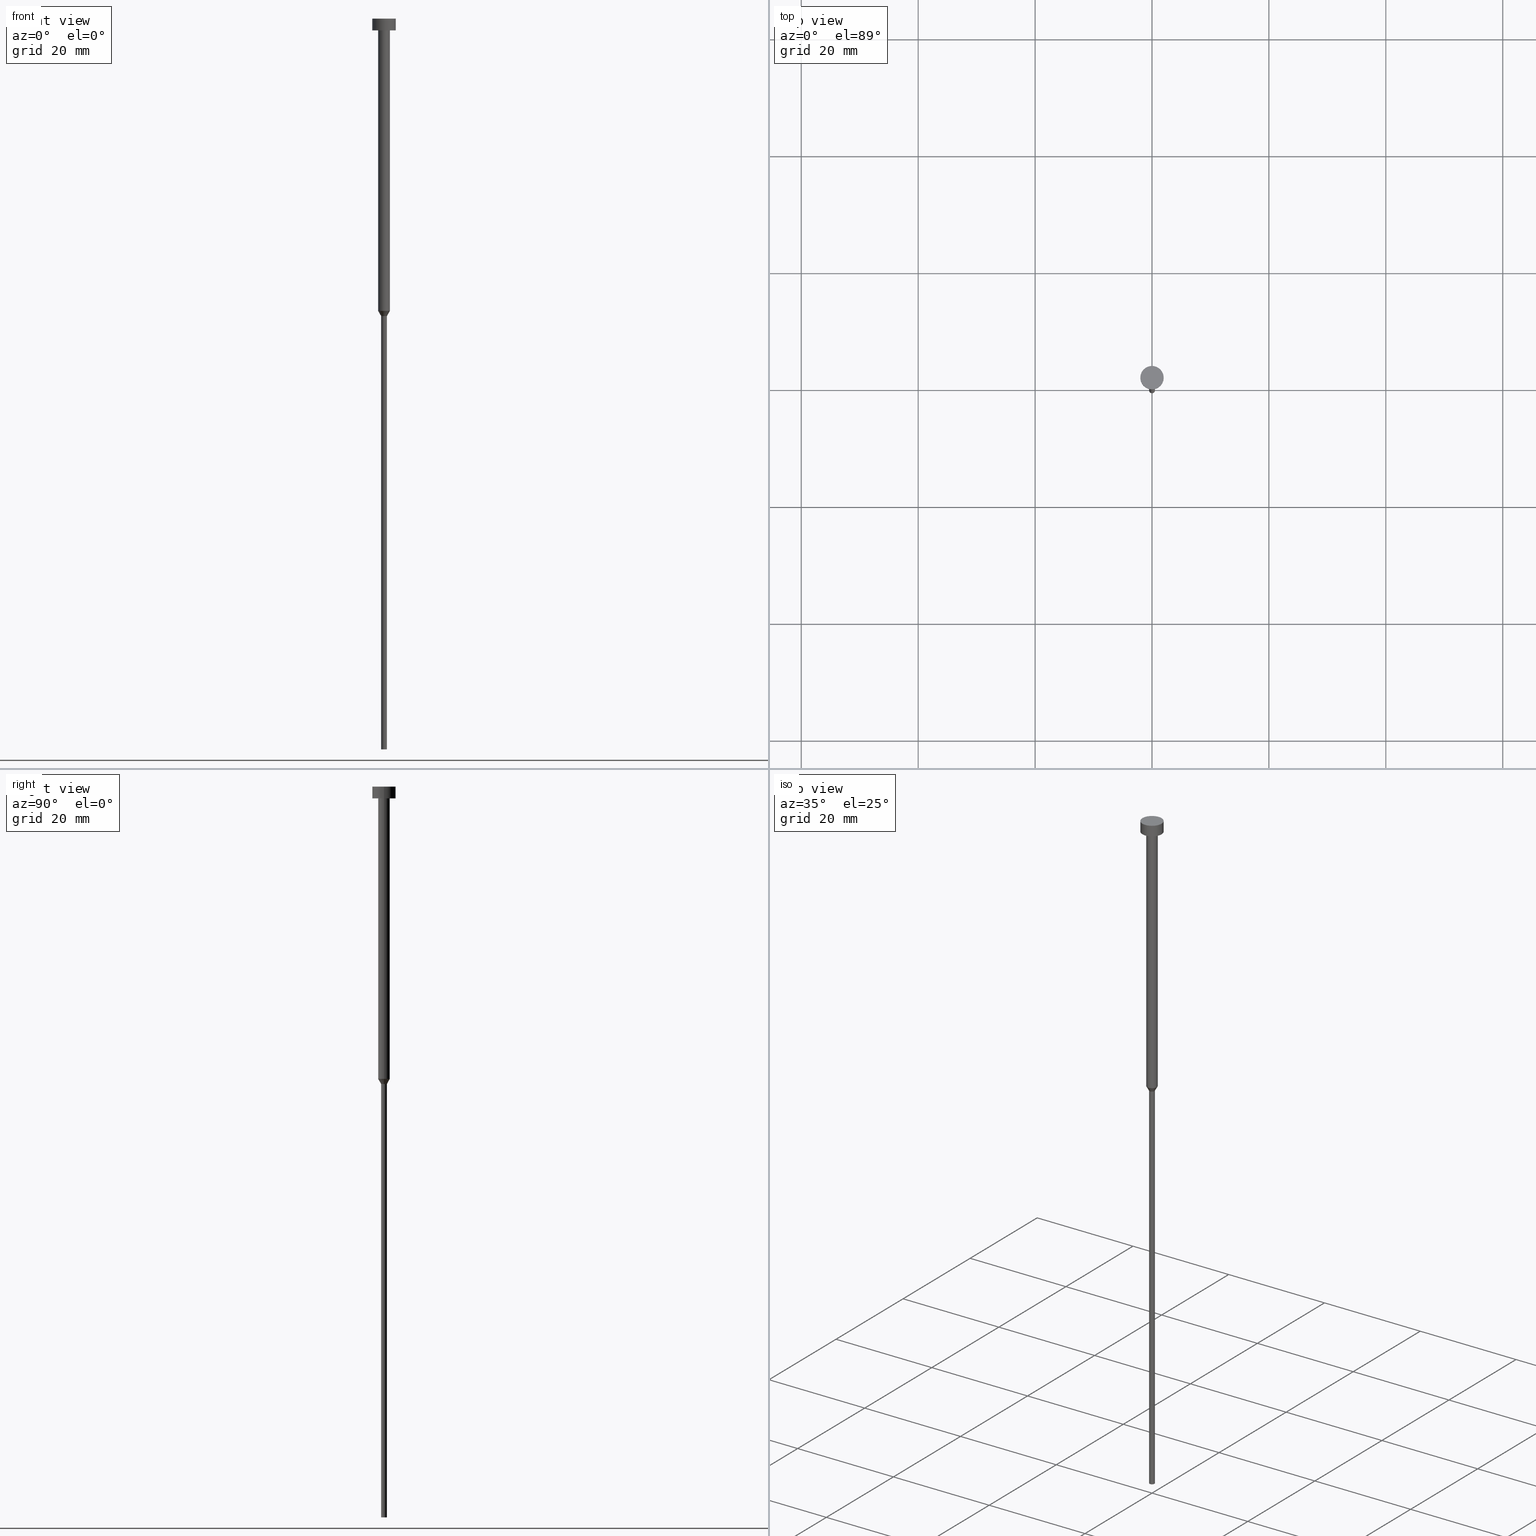
[diagram: canonical four-view strip — front | top / right | iso, engineering-drawing reading convention]
A machine part, canonical four-view strip (front | top / right | iso — engineering-drawing reading convention). The complete STEP part file that produces these views, byte-faithful:
ISO-10303-21;
HEADER;
FILE_DESCRIPTION (( 'STEP AP203' ),
    '1' );
FILE_NAME ('477e.STEP',
    '2023-02-13T11:53:13',
    ( '' ),
    ( '' ),
    'SwSTEP 2.0',
    'SolidWorks 2019',
    '' );
FILE_SCHEMA (( 'CONFIG_CONTROL_DESIGN' ));
ENDSEC;

DATA;
#1 = CYLINDRICAL_SURFACE ( 'NONE', #328, 2.000000000000000000 ) ;
#2 = EDGE_CURVE ( 'NONE', #6, #30, #67, .T. ) ;
#3 = CIRCLE ( 'NONE', #50, 2.000000000000000000 ) ;
#4 = CARTESIAN_POINT ( 'NONE',  ( 0.000000000000000000, 0.000000000000000000, 0.000000000000000000 ) ) ;
#5 = APPLICATION_CONTEXT ( 'configuration controlled 3d designs of mechanical parts and assemblies' ) ;
#6 = VERTEX_POINT ( 'NONE', #146 ) ;
#7 = ADVANCED_FACE ( 'NONE', ( #92 ), #121, .T. ) ;
#8 = VECTOR ( 'NONE', #203, 1000.000000000000114 ) ;
#9 = FACE_OUTER_BOUND ( 'NONE', #258, .T. ) ;
#10 = AXIS2_PLACEMENT_3D ( 'NONE', #155, #132, #293 ) ;
#11 = DIRECTION ( 'NONE',  ( 1.000000000000000000, 0.000000000000000000, 0.000000000000000000 ) ) ;
#12 = DIRECTION ( 'NONE',  ( -0.000000000000000000, -0.000000000000000000, 1.000000000000000000 ) ) ;
#13 = ORIENTED_EDGE ( 'NONE', *, *, #282, .T. ) ;
#14 = FACE_BOUND ( 'NONE', #36, .T. ) ;
#15 = ORIENTED_EDGE ( 'NONE', *, *, #222, .T. ) ;
#16 = CARTESIAN_POINT ( 'NONE',  ( 0.000000000000000000, 0.000000000000000000, -2.449293598294705921E-16 ) ) ;
#17 = ORIENTED_EDGE ( 'NONE', *, *, #353, .F. ) ;
#18 = ORIENTED_EDGE ( 'NONE', *, *, #27, .F. ) ;
#19 = EDGE_CURVE ( 'NONE', #308, #65, #204, .T. ) ;
#20 = AXIS2_PLACEMENT_3D ( 'NONE', #352, #211, #246 ) ;
#21 = PERSON_AND_ORGANIZATION ( #123, #74 ) ;
#22 = DIRECTION ( 'NONE',  ( 1.000000000000000000, 0.000000000000000000, 0.000000000000000000 ) ) ;
#23 = LOCAL_TIME ( 12, 53, 13.00000000000000000, #210 ) ;
#24 = DIRECTION ( 'NONE',  ( 1.000000000000000000, 0.000000000000000000, 0.000000000000000000 ) ) ;
#25 = PERSON_AND_ORGANIZATION_ROLE ( 'creator' ) ;
#26 = CARTESIAN_POINT ( 'NONE',  ( -2.000000000000000000, 2.449293598294706414E-16, 0.000000000000000000 ) ) ;
#27 = EDGE_CURVE ( 'NONE', #257, #148, #182, .T. ) ;
#28 = CARTESIAN_POINT ( 'NONE',  ( -2.000000000000000000, 2.449293598294706414E-16, -2.449293598294705921E-16 ) ) ;
#29 = LOCAL_TIME ( 12, 53, 13.00000000000000000, #208 ) ;
#30 = VERTEX_POINT ( 'NONE', #326 ) ;
#31 = DIRECTION ( 'NONE',  ( 1.000000000000000000, 0.000000000000000000, 0.000000000000000000 ) ) ;
#32 = CIRCLE ( 'NONE', #310, 2.000000000000000000 ) ;
#33 = AXIS2_PLACEMENT_3D ( 'NONE', #350, #94, #342 ) ;
#34 = EDGE_CURVE ( 'NONE', #220, #308, #131, .T. ) ;
#35 = DIRECTION ( 'NONE',  ( -0.000000000000000000, -0.000000000000000000, 1.000000000000000000 ) ) ;
#36 = EDGE_LOOP ( 'NONE', ( #228, #61 ) ) ;
#37 = DIRECTION ( 'NONE',  ( 1.000000000000000000, 0.000000000000000000, 0.000000000000000000 ) ) ;
#38 = ORIENTED_EDGE ( 'NONE', *, *, #200, .T. ) ;
#39 = ORIENTED_EDGE ( 'NONE', *, *, #320, .F. ) ;
#40 = DIRECTION ( 'NONE',  ( -0.000000000000000000, -0.000000000000000000, 1.000000000000000000 ) ) ;
#41 = ORIENTED_EDGE ( 'NONE', *, *, #166, .T. ) ;
#42 = VECTOR ( 'NONE', #73, 1000.000000000000000 ) ;
#43 = ORIENTED_EDGE ( 'NONE', *, *, #340, .T. ) ;
#44 = AXIS2_PLACEMENT_3D ( 'NONE', #163, #276, #111 ) ;
#45 = EDGE_LOOP ( 'NONE', ( #38, #118, #311, #95 ) ) ;
#46 = ADVANCED_FACE ( 'NONE', ( #78 ), #192, .T. ) ;
#47 = PERSON_AND_ORGANIZATION_ROLE ( 'design_owner' ) ;
#48 = DIRECTION ( 'NONE',  ( -0.000000000000000000, -0.000000000000000000, 1.000000000000000000 ) ) ;
#49 = DIRECTION ( 'NONE',  ( 1.000000000000000000, 0.000000000000000000, 0.000000000000000000 ) ) ;
#50 = AXIS2_PLACEMENT_3D ( 'NONE', #16, #12, #66 ) ;
#51 = DIRECTION ( 'NONE',  ( -0.5000000000000005551, 6.123233995736773431E-17, 0.8660254037844382635 ) ) ;
#52 = CARTESIAN_POINT ( 'NONE',  ( -1.000000000000003553, 1.224646799147357398E-16, -2.000000000000000444 ) ) ;
#53 = COORDINATED_UNIVERSAL_TIME_OFFSET ( 1, 0, .AHEAD. ) ;
#54 = FACE_OUTER_BOUND ( 'NONE', #137, .T. ) ;
#55 = APPROVAL_PERSON_ORGANIZATION ( #265, #134, #188 ) ;
#56 = DIRECTION ( 'NONE',  ( 1.000000000000000000, 0.000000000000000000, 0.000000000000000000 ) ) ;
#57 = ADVANCED_FACE ( 'NONE', ( #213 ), #209, .T. ) ;
#58 = ORIENTED_EDGE ( 'NONE', *, *, #254, .F. ) ;
#59 = PLANE ( 'NONE',  #162 ) ;
#60 = CC_DESIGN_APPROVAL ( #134, ( #217 ) ) ;
#61 = ORIENTED_EDGE ( 'NONE', *, *, #254, .T. ) ;
#62 = ADVANCED_FACE ( 'NONE', ( #54 ), #161, .T. ) ;
#63 = DIRECTION ( 'NONE',  ( -0.000000000000000000, -0.000000000000000000, 1.000000000000000000 ) ) ;
#64 = CIRCLE ( 'NONE', #323, 1.000000000000003553 ) ;
#65 = VERTEX_POINT ( 'NONE', #52 ) ;
#66 = DIRECTION ( 'NONE',  ( 1.000000000000000000, 0.000000000000000000, 0.000000000000000000 ) ) ;
#67 = LINE ( 'NONE', #291, #296 ) ;
#68 = CC_DESIGN_SECURITY_CLASSIFICATION ( #183, ( #252 ) ) ;
#69 = DIRECTION ( 'NONE',  ( 0.000000000000000000, 0.000000000000000000, 1.000000000000000000 ) ) ;
#70 = LINE ( 'NONE', #284, #167 ) ;
#71 = VERTEX_POINT ( 'NONE', #28 ) ;
#72 = EDGE_CURVE ( 'NONE', #308, #220, #264, .T. ) ;
#73 = DIRECTION ( 'NONE',  ( -0.000000000000000000, -0.000000000000000000, 1.000000000000000000 ) ) ;
#74 = ORGANIZATION ( 'NEUR�EN�', 'NEUR�EN�', '' ) ;
#75 = CALENDAR_DATE ( 2023, 13, 2 ) ;
#76 = FACE_OUTER_BOUND ( 'NONE', #45, .T. ) ;
#77 = DATE_AND_TIME ( #75, #175 ) ;
#78 = FACE_OUTER_BOUND ( 'NONE', #238, .T. ) ;
#79 = DIRECTION ( 'NONE',  ( 1.000000000000000000, 0.000000000000000000, 0.000000000000000000 ) ) ;
#80 = VECTOR ( 'NONE', #130, 1000.000000000000000 ) ;
#81 = CARTESIAN_POINT ( 'NONE',  ( 0.000000000000000000, 0.000000000000000000, -125.0000000000000000 ) ) ;
#82 = CARTESIAN_POINT ( 'NONE',  ( 0.000000000000000000, 0.000000000000000000, -50.00000000000000000 ) ) ;
#83 = ADVANCED_FACE ( 'NONE', ( #106 ), #1, .T. ) ;
#84 = DIRECTION ( 'NONE',  ( -0.000000000000000000, -0.000000000000000000, 1.000000000000000000 ) ) ;
#85 = ORIENTED_EDGE ( 'NONE', *, *, #34, .T. ) ;
#86 = DIRECTION ( 'NONE',  ( -0.000000000000000000, -0.000000000000000000, 1.000000000000000000 ) ) ;
#87 = CIRCLE ( 'NONE', #305, 2.000000000000000000 ) ;
#88 = DIRECTION ( 'NONE',  ( 0.000000000000000000, 0.000000000000000000, -1.000000000000000000 ) ) ;
#89 = CARTESIAN_POINT ( 'NONE',  ( 0.000000000000000000, 0.000000000000000000, -125.0000000000000000 ) ) ;
#90 = VERTEX_POINT ( 'NONE', #154 ) ;
#91 = DIRECTION ( 'NONE',  ( -1.000000000000000000, 0.000000000000000000, -0.000000000000000000 ) ) ;
#92 = FACE_OUTER_BOUND ( 'NONE', #348, .T. ) ;
#93 = FACE_OUTER_BOUND ( 'NONE', #169, .T. ) ;
#94 = DIRECTION ( 'NONE',  ( 0.000000000000000000, -0.000000000000000000, 1.000000000000000000 ) ) ;
#95 = ORIENTED_EDGE ( 'NONE', *, *, #340, .F. ) ;
#96 = AXIS2_PLACEMENT_3D ( 'NONE', #99, #292, #321 ) ;
#97 = PERSON_AND_ORGANIZATION_ROLE ( 'creator' ) ;
#98 = APPROVAL_PERSON_ORGANIZATION ( #299, #122, #109 ) ;
#99 = CARTESIAN_POINT ( 'NONE',  ( 0.000000000000000000, 0.000000000000000000, 0.000000000000000000 ) ) ;
#100 = APPROVAL_DATE_TIME ( #298, #134 ) ;
#101 = APPLICATION_CONTEXT ( 'configuration controlled 3d designs of mechanical parts and assemblies' ) ;
#102 = APPROVAL_ROLE ( '' ) ;
#103 = FACE_OUTER_BOUND ( 'NONE', #332, .T. ) ;
#104 = AXIS2_PLACEMENT_3D ( 'NONE', #267, #317, #24 ) ;
#105 = CALENDAR_DATE ( 2023, 13, 2 ) ;
#106 = FACE_OUTER_BOUND ( 'NONE', #262, .T. ) ;
#107 = DIRECTION ( 'NONE',  ( 1.000000000000000000, 0.000000000000000000, 0.000000000000000000 ) ) ;
#108 = CC_DESIGN_PERSON_AND_ORGANIZATION_ASSIGNMENT ( #322, #47, ( #339 ) ) ;
#109 = APPROVAL_ROLE ( '' ) ;
#110 = ORIENTED_EDGE ( 'NONE', *, *, #222, .F. ) ;
#111 = DIRECTION ( 'NONE',  ( 1.000000000000000000, 0.000000000000000000, 0.000000000000000000 ) ) ;
#112 = VERTEX_POINT ( 'NONE', #316 ) ;
#113 = DIRECTION ( 'NONE',  ( 1.000000000000000000, 0.000000000000000000, 0.000000000000000000 ) ) ;
#114 =( NAMED_UNIT ( * ) SI_UNIT ( $, .STERADIAN. ) SOLID_ANGLE_UNIT ( ) );
#115 = ORIENTED_EDGE ( 'NONE', *, *, #202, .F. ) ;
#116 = ADVANCED_FACE ( 'NONE', ( #76 ), #144, .T. ) ;
#117 = DIRECTION ( 'NONE',  ( -1.000000000000000000, 0.000000000000000000, -0.000000000000000000 ) ) ;
#118 = ORIENTED_EDGE ( 'NONE', *, *, #143, .T. ) ;
#119 = CIRCLE ( 'NONE', #274, 0.5000000000000000000 ) ;
#120 = DIRECTION ( 'NONE',  ( -0.000000000000000000, -0.000000000000000000, 1.000000000000000000 ) ) ;
#121 = PLANE ( 'NONE',  #33 ) ;
#122 = APPROVAL ( #140, 'NEUR�EN�' ) ;
#123 = PERSON ( 'NEUR�EN�', 'NEUR�EN�', 'NEUR�EN�', ('NEUR�EN�'), ('NEUR�EN�'), ('NEUR�EN�') ) ;
#124 = COORDINATED_UNIVERSAL_TIME_OFFSET ( 1, 0, .AHEAD. ) ;
#125 = CIRCLE ( 'NONE', #261, 1.000000000000003553 ) ;
#126 = EDGE_CURVE ( 'NONE', #90, #65, #64, .T. ) ;
#127 = PERSON_AND_ORGANIZATION ( #123, #74 ) ;
#128 = CYLINDRICAL_SURFACE ( 'NONE', #193, 1.000000000000003331 ) ;
#129 = CALENDAR_DATE ( 2023, 13, 2 ) ;
#130 = DIRECTION ( 'NONE',  ( -0.000000000000000000, -0.000000000000000000, 1.000000000000000000 ) ) ;
#131 = CIRCLE ( 'NONE', #170, 1.000000000000003109 ) ;
#132 = DIRECTION ( 'NONE',  ( -0.000000000000000000, -0.000000000000000000, 1.000000000000000000 ) ) ;
#133 = CIRCLE ( 'NONE', #156, 2.000000000000000000 ) ;
#134 = APPROVAL ( #354, 'NEUR�EN�' ) ;
#135 = CARTESIAN_POINT ( 'NONE',  ( 0.000000000000000000, 0.000000000000000000, -125.0000000000000000 ) ) ;
#136 = ORIENTED_EDGE ( 'NONE', *, *, #226, .T. ) ;
#137 = EDGE_LOOP ( 'NONE', ( #286, #136, #306, #39 ) ) ;
#138 = ADVANCED_FACE ( 'NONE', ( #103 ), #128, .T. ) ;
#139 = CARTESIAN_POINT ( 'NONE',  ( -2.000000000000000000, 2.449293598294706414E-16, -2.000000000000000444 ) ) ;
#140 = APPROVAL_STATUS ( 'not_yet_approved' ) ;
#141 = CARTESIAN_POINT ( 'NONE',  ( 0.000000000000000000, 0.000000000000000000, -2.449293598294705921E-16 ) ) ;
#142 = LINE ( 'NONE', #224, #8 ) ;
#143 = EDGE_CURVE ( 'NONE', #30, #308, #355, .T. ) ;
#144 = CONICAL_SURFACE ( 'NONE', #104, 1.000000000000003109, 0.5235987755982994818 ) ;
#145 = ORIENTED_EDGE ( 'NONE', *, *, #2, .F. ) ;
#146 = CARTESIAN_POINT ( 'NONE',  ( -0.5000000000000000000, 6.123233995736766036E-17, -125.0000000000000000 ) ) ;
#147 = ADVANCED_BREP_SHAPE_REPRESENTATION ( '477e', ( #236, #242 ), #315 ) ;
#148 = VERTEX_POINT ( 'NONE', #158 ) ;
#149 = ORIENTED_EDGE ( 'NONE', *, *, #273, .F. ) ;
#150 = CIRCLE ( 'NONE', #301, 0.5000000000000000000 ) ;
#151 =( NAMED_UNIT ( * ) PLANE_ANGLE_UNIT ( ) SI_UNIT ( $, .RADIAN. ) );
#152 = ORIENTED_EDGE ( 'NONE', *, *, #168, .T. ) ;
#153 = PERSON_AND_ORGANIZATION_ROLE ( 'design_supplier' ) ;
#154 = CARTESIAN_POINT ( 'NONE',  ( 1.000000000000003553, 0.000000000000000000, -2.000000000000000444 ) ) ;
#155 = CARTESIAN_POINT ( 'NONE',  ( 0.000000000000000000, 0.000000000000000000, -50.00000000000000000 ) ) ;
#156 = AXIS2_PLACEMENT_3D ( 'NONE', #259, #227, #37 ) ;
#157 = DATE_AND_TIME ( #105, #255 ) ;
#158 = CARTESIAN_POINT ( 'NONE',  ( 2.000000000000000000, 0.000000000000000000, -2.449293598294705921E-16 ) ) ;
#159 = CARTESIAN_POINT ( 'NONE',  ( 0.000000000000000000, 0.000000000000000000, 0.000000000000000000 ) ) ;
#160 = PERSON_AND_ORGANIZATION ( #123, #74 ) ;
#161 = CYLINDRICAL_SURFACE ( 'NONE', #333, 2.000000000000000000 ) ;
#162 = AXIS2_PLACEMENT_3D ( 'NONE', #89, #312, #91 ) ;
#163 = CARTESIAN_POINT ( 'NONE',  ( 0.000000000000000000, 0.000000000000000000, -50.86602540378444814 ) ) ;
#164 = FACE_OUTER_BOUND ( 'NONE', #176, .T. ) ;
#165 = APPROVAL ( #325, 'NEUR�EN�' ) ;
#166 = EDGE_CURVE ( 'NONE', #233, #71, #269, .T. ) ;
#167 = VECTOR ( 'NONE', #235, 1000.000000000000000 ) ;
#168 = EDGE_CURVE ( 'NONE', #112, #6, #150, .T. ) ;
#169 = EDGE_LOOP ( 'NONE', ( #145, #338, #285, #263 ) ) ;
#170 = AXIS2_PLACEMENT_3D ( 'NONE', #82, #248, #189 ) ;
#171 = DIRECTION ( 'NONE',  ( -0.000000000000000000, -0.000000000000000000, 1.000000000000000000 ) ) ;
#172 = ORIENTED_EDGE ( 'NONE', *, *, #327, .T. ) ;
#173 = PRODUCT_RELATED_PRODUCT_CATEGORY ( 'detail', '', ( #339 ) ) ;
#174 = CARTESIAN_POINT ( 'NONE',  ( 0.000000000000000000, 0.000000000000000000, -50.86602540378444814 ) ) ;
#175 = LOCAL_TIME ( 12, 53, 13.00000000000000000, #53 ) ;
#176 = EDGE_LOOP ( 'NONE', ( #344, #288, #13, #58 ) ) ;
#177 = MECHANICAL_CONTEXT ( 'NONE', #5, 'mechanical' ) ;
#178 = VERTEX_POINT ( 'NONE', #221 ) ;
#179 = CARTESIAN_POINT ( 'NONE',  ( 1.000000000000003331, 0.000000000000000000, 0.000000000000000000 ) ) ;
#180 = ORIENTED_EDGE ( 'NONE', *, *, #72, .F. ) ;
#181 = DIRECTION ( 'NONE',  ( 1.000000000000000000, 0.000000000000000000, 0.000000000000000000 ) ) ;
#182 = LINE ( 'NONE', #272, #250 ) ;
#183 = SECURITY_CLASSIFICATION ( '', '', #244 ) ;
#184 = CARTESIAN_POINT ( 'NONE',  ( 0.000000000000000000, 0.000000000000000000, -2.000000000000000444 ) ) ;
#185 = APPROVAL_DATE_TIME ( #77, #165 ) ;
#186 = CARTESIAN_POINT ( 'NONE',  ( -1.000000000000003109, 1.224646799147356905E-16, -50.00000000000000000 ) ) ;
#187 = AXIS2_PLACEMENT_3D ( 'NONE', #277, #86, #31 ) ;
#188 = APPROVAL_ROLE ( '' ) ;
#189 = DIRECTION ( 'NONE',  ( 1.000000000000000000, 0.000000000000000000, 0.000000000000000000 ) ) ;
#190 = LOCAL_TIME ( 12, 53, 13.00000000000000000, #249 ) ;
#191 = CARTESIAN_POINT ( 'NONE',  ( 0.000000000000000000, 0.000000000000000000, -2.000000000000000444 ) ) ;
#192 = CONICAL_SURFACE ( 'NONE', #20, 1.000000000000003109, 0.5235987755982994818 ) ;
#193 = AXIS2_PLACEMENT_3D ( 'NONE', #324, #245, #79 ) ;
#194 = DIRECTION ( 'NONE',  ( 1.000000000000000000, 0.000000000000000000, 0.000000000000000000 ) ) ;
#195 = CYLINDRICAL_SURFACE ( 'NONE', #351, 0.5000000000000000000 ) ;
#196 = ORIENTED_EDGE ( 'NONE', *, *, #226, .F. ) ;
#197 = CARTESIAN_POINT ( 'NONE',  ( -1.000000000000003109, 1.224646799147356905E-16, -50.00000000000000000 ) ) ;
#198 = ORIENTED_EDGE ( 'NONE', *, *, #320, .T. ) ;
#199 = CIRCLE ( 'NONE', #44, 0.5000000000000000000 ) ;
#200 = EDGE_CURVE ( 'NONE', #178, #30, #199, .T. ) ;
#201 = ORIENTED_EDGE ( 'NONE', *, *, #282, .F. ) ;
#202 = EDGE_CURVE ( 'NONE', #6, #112, #232, .T. ) ;
#203 = DIRECTION ( 'NONE',  ( 0.5000000000000005551, 0.000000000000000000, 0.8660254037844382635 ) ) ;
#204 = LINE ( 'NONE', #206, #42 ) ;
#205 = CARTESIAN_POINT ( 'NONE',  ( 0.000000000000000000, 0.000000000000000000, 0.000000000000000000 ) ) ;
#206 = CARTESIAN_POINT ( 'NONE',  ( -1.000000000000003331, 1.224646799147357151E-16, 0.000000000000000000 ) ) ;
#207 = ORIENTED_EDGE ( 'NONE', *, *, #200, .F. ) ;
#208 = COORDINATED_UNIVERSAL_TIME_OFFSET ( 1, 0, .AHEAD. ) ;
#209 = CYLINDRICAL_SURFACE ( 'NONE', #96, 0.5000000000000000000 ) ;
#210 = COORDINATED_UNIVERSAL_TIME_OFFSET ( 1, 0, .AHEAD. ) ;
#211 = DIRECTION ( 'NONE',  ( -0.000000000000000000, -0.000000000000000000, 1.000000000000000000 ) ) ;
#212 = CC_DESIGN_PERSON_AND_ORGANIZATION_ASSIGNMENT ( #127, #153, ( #252 ) ) ;
#213 = FACE_OUTER_BOUND ( 'NONE', #346, .T. ) ;
#214 = VECTOR ( 'NONE', #51, 1000.000000000000114 ) ;
#215 = PERSON_AND_ORGANIZATION ( #123, #74 ) ;
#216 = CARTESIAN_POINT ( 'NONE',  ( 1.000000000000003109, 0.000000000000000000, -50.00000000000000000 ) ) ;
#217 = PRODUCT_DEFINITION ( 'NEZN�M�', '', #252, #343 ) ;
#218 = CC_DESIGN_APPROVAL ( #122, ( #183 ) ) ;
#219 = DIRECTION ( 'NONE',  ( -0.000000000000000000, -0.000000000000000000, 1.000000000000000000 ) ) ;
#220 = VERTEX_POINT ( 'NONE', #216 ) ;
#221 = CARTESIAN_POINT ( 'NONE',  ( 0.5000000000000000000, 0.000000000000000000, -50.86602540378444814 ) ) ;
#222 = EDGE_CURVE ( 'NONE', #148, #71, #87, .T. ) ;
#223 = CC_DESIGN_APPROVAL ( #165, ( #252 ) ) ;
#224 = CARTESIAN_POINT ( 'NONE',  ( 1.000000000000003109, 0.000000000000000000, -50.00000000000000000 ) ) ;
#225 = ORIENTED_EDGE ( 'NONE', *, *, #143, .F. ) ;
#226 = EDGE_CURVE ( 'NONE', #233, #257, #32, .T. ) ;
#227 = DIRECTION ( 'NONE',  ( -0.000000000000000000, -0.000000000000000000, 1.000000000000000000 ) ) ;
#228 = ORIENTED_EDGE ( 'NONE', *, *, #126, .T. ) ;
#229 = ADVANCED_FACE ( 'NONE', ( #164 ), #331, .T. ) ;
#230 = ORIENTED_EDGE ( 'NONE', *, *, #2, .T. ) ;
#231 = CARTESIAN_POINT ( 'NONE',  ( 0.000000000000000000, -2.000000000000000000, -2.000000000000000444 ) ) ;
#232 = CIRCLE ( 'NONE', #279, 0.5000000000000000000 ) ;
#233 = VERTEX_POINT ( 'NONE', #139 ) ;
#234 = CC_DESIGN_DATE_AND_TIME_ASSIGNMENT ( #319, #330, ( #183 ) ) ;
#235 = DIRECTION ( 'NONE',  ( -0.000000000000000000, -0.000000000000000000, 1.000000000000000000 ) ) ;
#236 = MANIFOLD_SOLID_BREP ( 'Rotovat1', #302 ) ;
#237 = ORIENTED_EDGE ( 'NONE', *, *, #273, .T. ) ;
#238 = EDGE_LOOP ( 'NONE', ( #225, #172, #43, #180 ) ) ;
#239 = CC_DESIGN_PERSON_AND_ORGANIZATION_ASSIGNMENT ( #21, #25, ( #217 ) ) ;
#240 = DATE_TIME_ROLE ( 'creation_date' ) ;
#241 = DIRECTION ( 'NONE',  ( -0.000000000000000000, -0.000000000000000000, 1.000000000000000000 ) ) ;
#242 = AXIS2_PLACEMENT_3D ( 'NONE', #205, #69, #113 ) ;
#243 = ADVANCED_FACE ( 'NONE', ( #9 ), #59, .T. ) ;
#244 = SECURITY_CLASSIFICATION_LEVEL ( 'unclassified' ) ;
#245 = DIRECTION ( 'NONE',  ( -0.000000000000000000, -0.000000000000000000, 1.000000000000000000 ) ) ;
#246 = DIRECTION ( 'NONE',  ( 1.000000000000000000, 0.000000000000000000, 0.000000000000000000 ) ) ;
#247 = CALENDAR_DATE ( 2023, 13, 2 ) ;
#248 = DIRECTION ( 'NONE',  ( -0.000000000000000000, -0.000000000000000000, 1.000000000000000000 ) ) ;
#249 = COORDINATED_UNIVERSAL_TIME_OFFSET ( 1, 0, .AHEAD. ) ;
#250 = VECTOR ( 'NONE', #241, 1000.000000000000000 ) ;
#251 = ORIENTED_EDGE ( 'NONE', *, *, #19, .T. ) ;
#252 = PRODUCT_DEFINITION_FORMATION_WITH_SPECIFIED_SOURCE ( 'LIBOVOLN�', '', #339, .NOT_KNOWN. ) ;
#253 = DIRECTION ( 'NONE',  ( 1.000000000000000000, 0.000000000000000000, 0.000000000000000000 ) ) ;
#254 = EDGE_CURVE ( 'NONE', #65, #90, #125, .T. ) ;
#255 = LOCAL_TIME ( 12, 53, 13.00000000000000000, #124 ) ;
#256 = PLANE ( 'NONE',  #289 ) ;
#257 = VERTEX_POINT ( 'NONE', #337 ) ;
#258 = EDGE_LOOP ( 'NONE', ( #313, #115 ) ) ;
#259 = CARTESIAN_POINT ( 'NONE',  ( 0.000000000000000000, 0.000000000000000000, -2.000000000000000444 ) ) ;
#260 = DIRECTION ( 'NONE',  ( -0.000000000000000000, -0.000000000000000000, 1.000000000000000000 ) ) ;
#261 = AXIS2_PLACEMENT_3D ( 'NONE', #287, #171, #341 ) ;
#262 = EDGE_LOOP ( 'NONE', ( #237, #41, #110, #18 ) ) ;
#263 = ORIENTED_EDGE ( 'NONE', *, *, #327, .F. ) ;
#264 = CIRCLE ( 'NONE', #10, 1.000000000000003109 ) ;
#265 = PERSON_AND_ORGANIZATION ( #123, #74 ) ;
#266 = DIRECTION ( 'NONE',  ( -0.000000000000000000, -0.000000000000000000, 1.000000000000000000 ) ) ;
#267 = CARTESIAN_POINT ( 'NONE',  ( 0.000000000000000000, 0.000000000000000000, -50.00000000000000000 ) ) ;
#268 = PERSON_AND_ORGANIZATION ( #123, #74 ) ;
#269 = LINE ( 'NONE', #26, #80 ) ;
#270 = DIRECTION ( 'NONE',  ( -0.000000000000000000, -0.000000000000000000, 1.000000000000000000 ) ) ;
#271 = PRODUCT_DEFINITION_SHAPE ( 'NONE', 'NONE',  #217 ) ;
#272 = CARTESIAN_POINT ( 'NONE',  ( 2.000000000000000000, 0.000000000000000000, 0.000000000000000000 ) ) ;
#273 = EDGE_CURVE ( 'NONE', #257, #233, #133, .T. ) ;
#274 = AXIS2_PLACEMENT_3D ( 'NONE', #174, #40, #181 ) ;
#275 = ORIENTED_EDGE ( 'NONE', *, *, #126, .F. ) ;
#276 = DIRECTION ( 'NONE',  ( -0.000000000000000000, -0.000000000000000000, 1.000000000000000000 ) ) ;
#277 = CARTESIAN_POINT ( 'NONE',  ( 0.000000000000000000, 0.000000000000000000, 0.000000000000000000 ) ) ;
#278 = CC_DESIGN_PERSON_AND_ORGANIZATION_ASSIGNMENT ( #268, #97, ( #252 ) ) ;
#279 = AXIS2_PLACEMENT_3D ( 'NONE', #135, #35, #194 ) ;
#280 = DATE_AND_TIME ( #329, #190 ) ;
#281 = DIRECTION ( 'NONE',  ( 1.000000000000000000, 0.000000000000000000, 0.000000000000000000 ) ) ;
#282 = EDGE_CURVE ( 'NONE', #220, #90, #307, .T. ) ;
#283 = VECTOR ( 'NONE', #120, 1000.000000000000000 ) ;
#284 = CARTESIAN_POINT ( 'NONE',  ( 0.5000000000000000000, 0.000000000000000000, 0.000000000000000000 ) ) ;
#285 = ORIENTED_EDGE ( 'NONE', *, *, #353, .T. ) ;
#286 = ORIENTED_EDGE ( 'NONE', *, *, #166, .F. ) ;
#287 = CARTESIAN_POINT ( 'NONE',  ( 0.000000000000000000, 0.000000000000000000, -2.000000000000000444 ) ) ;
#288 = ORIENTED_EDGE ( 'NONE', *, *, #72, .T. ) ;
#289 = AXIS2_PLACEMENT_3D ( 'NONE', #231, #88, #117 ) ;
#290 =( LENGTH_UNIT ( ) NAMED_UNIT ( * ) SI_UNIT ( .MILLI., .METRE. ) );
#291 = CARTESIAN_POINT ( 'NONE',  ( -0.5000000000000000000, 6.123233995736766036E-17, 0.000000000000000000 ) ) ;
#292 = DIRECTION ( 'NONE',  ( -0.000000000000000000, -0.000000000000000000, 1.000000000000000000 ) ) ;
#293 = DIRECTION ( 'NONE',  ( 1.000000000000000000, 0.000000000000000000, 0.000000000000000000 ) ) ;
#294 = CC_DESIGN_DATE_AND_TIME_ASSIGNMENT ( #157, #240, ( #217 ) ) ;
#295 = APPLICATION_PROTOCOL_DEFINITION ( 'international standard', 'config_control_design', 1994, #101 ) ;
#296 = VECTOR ( 'NONE', #260, 1000.000000000000000 ) ;
#297 = CC_DESIGN_PERSON_AND_ORGANIZATION_ASSIGNMENT ( #160, #349, ( #183 ) ) ;
#298 = DATE_AND_TIME ( #247, #29 ) ;
#299 = PERSON_AND_ORGANIZATION ( #123, #74 ) ;
#300 = DIRECTION ( 'NONE',  ( -0.000000000000000000, -0.000000000000000000, 1.000000000000000000 ) ) ;
#301 = AXIS2_PLACEMENT_3D ( 'NONE', #81, #300, #56 ) ;
#302 = CLOSED_SHELL ( 'NONE', ( #83, #138, #116, #57, #243, #336, #46, #229, #304, #62, #7 ) ) ;
#303 = APPROVAL_DATE_TIME ( #280, #122 ) ;
#304 = ADVANCED_FACE ( 'NONE', ( #14, #314 ), #256, .T. ) ;
#305 = AXIS2_PLACEMENT_3D ( 'NONE', #141, #84, #253 ) ;
#306 = ORIENTED_EDGE ( 'NONE', *, *, #27, .T. ) ;
#307 = LINE ( 'NONE', #179, #283 ) ;
#308 = VERTEX_POINT ( 'NONE', #197 ) ;
#309 = EDGE_LOOP ( 'NONE', ( #149, #196 ) ) ;
#310 = AXIS2_PLACEMENT_3D ( 'NONE', #191, #219, #11 ) ;
#311 = ORIENTED_EDGE ( 'NONE', *, *, #34, .F. ) ;
#312 = DIRECTION ( 'NONE',  ( 0.000000000000000000, 0.000000000000000000, -1.000000000000000000 ) ) ;
#313 = ORIENTED_EDGE ( 'NONE', *, *, #168, .F. ) ;
#314 = FACE_OUTER_BOUND ( 'NONE', #309, .T. ) ;
#315 =( GEOMETRIC_REPRESENTATION_CONTEXT ( 3 ) GLOBAL_UNCERTAINTY_ASSIGNED_CONTEXT ( ( #318 ) ) GLOBAL_UNIT_ASSIGNED_CONTEXT ( ( #290, #151, #114 ) ) REPRESENTATION_CONTEXT ( 'NONE', 'WORKASPACE' ) );
#316 = CARTESIAN_POINT ( 'NONE',  ( 0.5000000000000000000, 0.000000000000000000, -125.0000000000000000 ) ) ;
#317 = DIRECTION ( 'NONE',  ( -0.000000000000000000, -0.000000000000000000, 1.000000000000000000 ) ) ;
#318 = UNCERTAINTY_MEASURE_WITH_UNIT (LENGTH_MEASURE( 1.000000000000000082E-05 ), #290, 'distance_accuracy_value', 'NONE');
#319 = DATE_AND_TIME ( #129, #23 ) ;
#320 = EDGE_CURVE ( 'NONE', #71, #148, #3, .T. ) ;
#321 = DIRECTION ( 'NONE',  ( 1.000000000000000000, 0.000000000000000000, 0.000000000000000000 ) ) ;
#322 = PERSON_AND_ORGANIZATION ( #123, #74 ) ;
#323 = AXIS2_PLACEMENT_3D ( 'NONE', #184, #266, #22 ) ;
#324 = CARTESIAN_POINT ( 'NONE',  ( 0.000000000000000000, 0.000000000000000000, 0.000000000000000000 ) ) ;
#325 = APPROVAL_STATUS ( 'not_yet_approved' ) ;
#326 = CARTESIAN_POINT ( 'NONE',  ( -0.5000000000000000000, 6.123233995736766036E-17, -50.86602540378444814 ) ) ;
#327 = EDGE_CURVE ( 'NONE', #30, #178, #119, .T. ) ;
#328 = AXIS2_PLACEMENT_3D ( 'NONE', #4, #48, #107 ) ;
#329 = CALENDAR_DATE ( 2023, 13, 2 ) ;
#330 = DATE_TIME_ROLE ( 'classification_date' ) ;
#331 = CYLINDRICAL_SURFACE ( 'NONE', #187, 1.000000000000003331 ) ;
#332 = EDGE_LOOP ( 'NONE', ( #85, #251, #275, #201 ) ) ;
#333 = AXIS2_PLACEMENT_3D ( 'NONE', #159, #270, #49 ) ;
#334 = SHAPE_DEFINITION_REPRESENTATION ( #271, #147 ) ;
#335 = APPROVAL_PERSON_ORGANIZATION ( #215, #165, #102 ) ;
#336 = ADVANCED_FACE ( 'NONE', ( #93 ), #195, .T. ) ;
#337 = CARTESIAN_POINT ( 'NONE',  ( 2.000000000000000000, 0.000000000000000000, -2.000000000000000444 ) ) ;
#338 = ORIENTED_EDGE ( 'NONE', *, *, #202, .T. ) ;
#339 = PRODUCT ( '477e', '477e', '', ( #177 ) ) ;
#340 = EDGE_CURVE ( 'NONE', #178, #220, #142, .T. ) ;
#341 = DIRECTION ( 'NONE',  ( 1.000000000000000000, 0.000000000000000000, 0.000000000000000000 ) ) ;
#342 = DIRECTION ( 'NONE',  ( 1.000000000000000000, 0.000000000000000000, 0.000000000000000000 ) ) ;
#343 = DESIGN_CONTEXT ( 'detailed design', #101, 'design' ) ;
#344 = ORIENTED_EDGE ( 'NONE', *, *, #19, .F. ) ;
#345 = CARTESIAN_POINT ( 'NONE',  ( 0.000000000000000000, 0.000000000000000000, 0.000000000000000000 ) ) ;
#346 = EDGE_LOOP ( 'NONE', ( #152, #230, #207, #17 ) ) ;
#347 = APPLICATION_PROTOCOL_DEFINITION ( 'international standard', 'config_control_design', 1994, #5 ) ;
#348 = EDGE_LOOP ( 'NONE', ( #15, #198 ) ) ;
#349 = PERSON_AND_ORGANIZATION_ROLE ( 'classification_officer' ) ;
#350 = CARTESIAN_POINT ( 'NONE',  ( 0.000000000000000000, 0.000000000000000000, -1.224646799147352961E-16 ) ) ;
#351 = AXIS2_PLACEMENT_3D ( 'NONE', #345, #63, #281 ) ;
#352 = CARTESIAN_POINT ( 'NONE',  ( 0.000000000000000000, 0.000000000000000000, -50.00000000000000000 ) ) ;
#353 = EDGE_CURVE ( 'NONE', #112, #178, #70, .T. ) ;
#354 = APPROVAL_STATUS ( 'not_yet_approved' ) ;
#355 = LINE ( 'NONE', #186, #214 ) ;
ENDSEC;
END-ISO-10303-21;
